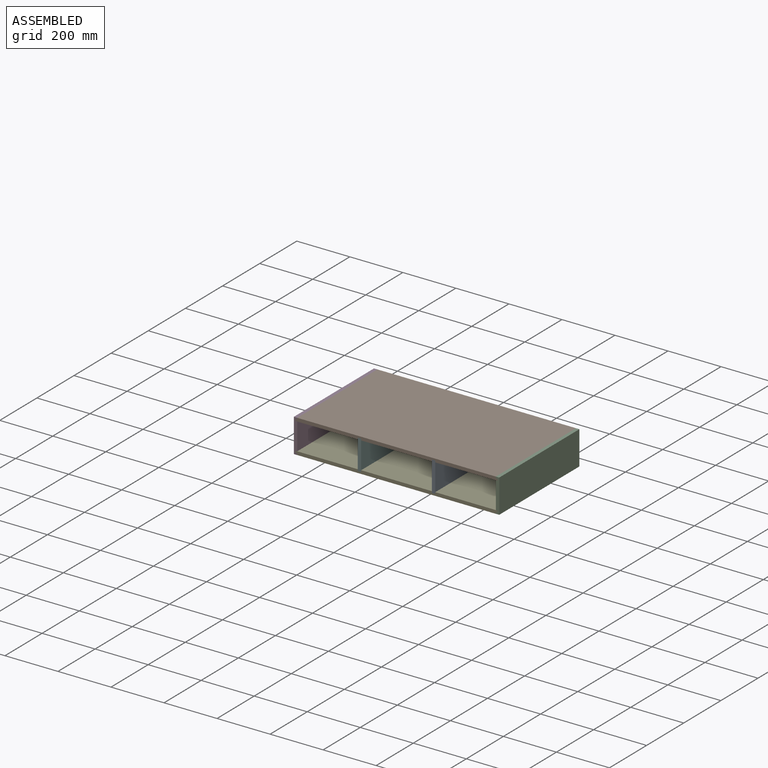
[diagram: assembled view]
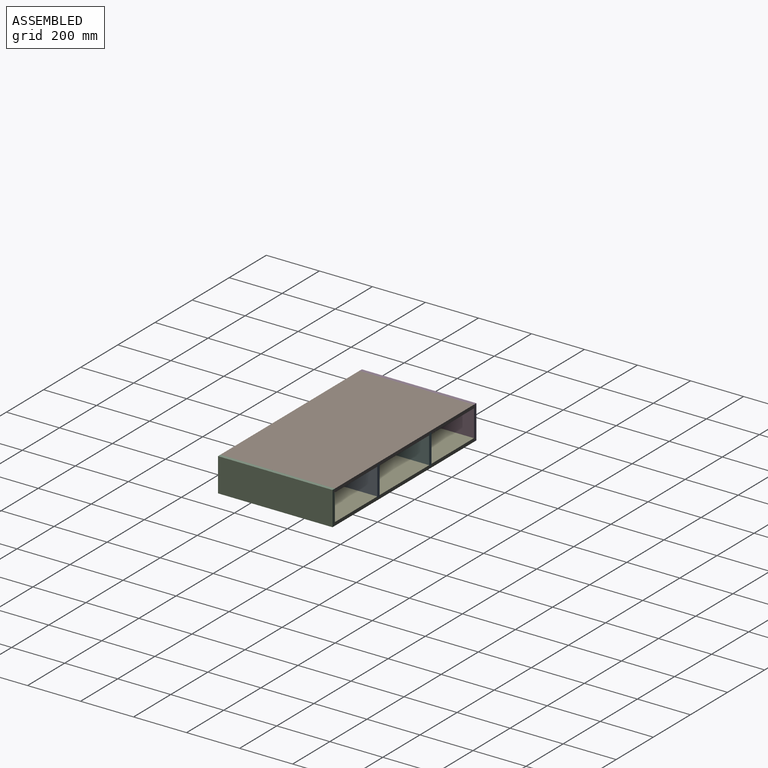
[diagram: assembled view, second angle]
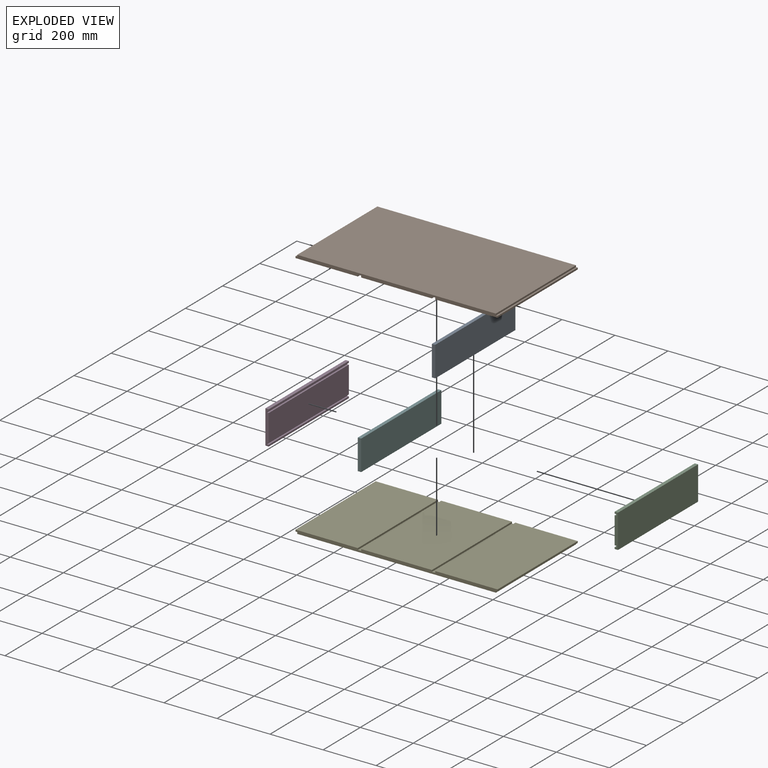
[diagram: exploded view]
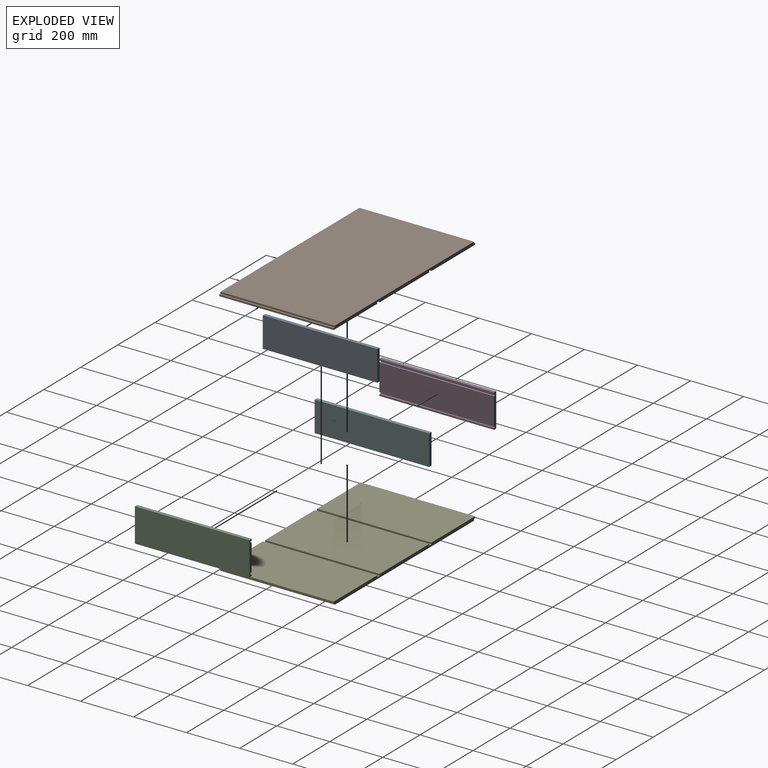
[diagram: exploded view, second angle]
ASSEMBLY  parts=6 mates=5
PART A: 6 faces, bbox 431.8x12.7x114.3 mm
  f0: plane 431.8x12.7mm, normal (0,0,1), area 5483.9mm2, adj f1,f3,f4,f5
  f1: plane 114.3x12.7mm, normal (-1,0,0), area 1451.6mm2, adj f0,f2,f4,f5
  f2: plane 431.8x12.7mm, normal (0,0,-1), area 5483.9mm2, adj f1,f3,f4,f5
  f3: plane 114.3x12.7mm, normal (1,0,0), area 1451.6mm2, adj f0,f2,f4,f5
  f4: plane 431.8x114.3mm, normal (0,-1,0), area 49354.7mm2, adj f0,f1,f2,f3
  f5: plane 431.8x114.3mm, normal (0,1,0), area 49354.7mm2, adj f0,f1,f2,f3
PART B: 18 faces, bbox 762x12.7x431.8 mm
  f0: plane 431.8x266.7mm, normal (0,1,0), area 115161.1mm2, adj f1,f4,f13,f15
  f1: plane 762x12.7mm, normal (0,0,1), area 9435.5mm2, adj f0,f2,f3,f5,f6,f7,f8,f9
  f2: plane 431.8x234.95mm, normal (0,1,0), area 101451.4mm2, adj f1,f4,f5,f12
  f3: plane 431.8x6.35mm, normal (-1,0,0), area 2741.9mm2, adj f1,f4,f7,f11
  f4: plane 762x12.7mm, normal (0,0,-1), area 9435.5mm2, adj f0,f2,f3,f5,f6,f7,f8,f9
  f5: plane 431.8x6.35mm, normal (1,0,0), area 2741.9mm2, adj f1,f2,f4,f9
  f6: plane 749.3x431.8mm, normal (0,-1,0), area 323547.7mm2, adj f1,f4,f8,f10
  f7: plane 431.8x234.95mm, normal (0,1,0), area 101451.4mm2, adj f1,f3,f4,f16
  f8: plane 431.8x6.35mm, normal (1,0,0), area 2741.9mm2, adj f1,f4,f6,f9
  f9: plane 431.8x6.35mm, normal (0,-1,0), area 2741.9mm2, adj f1,f4,f5,f8
  f10: plane 431.8x6.35mm, normal (-1,0,0), area 2741.9mm2, adj f1,f4,f6,f11
  f11: plane 431.8x6.35mm, normal (0,-1,0), area 2741.9mm2, adj f1,f3,f4,f10
  f12: plane 431.8x6.35mm, normal (-1,0,0), area 2741.9mm2, adj f1,f2,f4,f14
  f13: plane 431.8x6.35mm, normal (1,0,0), area 2741.9mm2, adj f0,f1,f4,f14
  f14: plane 431.8x12.7mm, normal (0,1,0), area 5483.9mm2, adj f1,f4,f12,f13
  f15: plane 431.8x6.35mm, normal (-1,0,0), area 2741.9mm2, adj f0,f1,f4,f17
  f16: plane 431.8x6.35mm, normal (1,0,0), area 2741.9mm2, adj f1,f4,f7,f17
  f17: plane 431.8x12.7mm, normal (0,1,0), area 5483.9mm2, adj f1,f4,f15,f16
PART C: 14 faces, bbox 431.8x12.7x127 mm
  f0: plane 431.8x101.6mm, normal (0,-1,0), area 43870.9mm2, adj f1,f4,f9,f11
  f1: plane 127x12.7mm, normal (1,0,0), area 1532.3mm2, adj f0,f2,f3,f5,f6,f7,f8,f9
  f2: plane 431.8x6.35mm, normal (0,-1,0), area 2741.9mm2, adj f1,f3,f4,f8
  f3: plane 431.8x12.7mm, normal (0,0,1), area 5483.9mm2, adj f1,f2,f4,f7
  f4: plane 127x12.7mm, normal (-1,0,0), area 1532.3mm2, adj f0,f2,f3,f5,f6,f7,f8,f9
  f5: plane 431.8x12.7mm, normal (0,0,-1), area 5483.9mm2, adj f1,f4,f6,f7
  f6: plane 431.8x6.35mm, normal (0,-1,0), area 2741.9mm2, adj f1,f4,f5,f12
  f7: plane 431.8x127mm, normal (0,1,0), area 54838.6mm2, adj f1,f3,f4,f5
  f8: plane 431.8x6.35mm, normal (0,0,-1), area 2741.9mm2, adj f1,f2,f4,f10
  f9: plane 431.8x6.35mm, normal (0,0,1), area 2741.9mm2, adj f0,f1,f4,f10
  f10: plane 431.8x6.35mm, normal (0,-1,0), area 2741.9mm2, adj f1,f4,f8,f9
  f11: plane 431.8x6.35mm, normal (0,0,-1), area 2741.9mm2, adj f0,f1,f4,f13
  f12: plane 431.8x6.35mm, normal (0,0,1), area 2741.9mm2, adj f1,f4,f6,f13
  f13: plane 431.8x6.35mm, normal (0,-1,0), area 2741.9mm2, adj f1,f4,f11,f12
PART D: same geometry as C
PART E: same geometry as B
PART F: same geometry as A
PLACE A rot(axis=(0,0,1),90deg) t=(753.49,-176.35,-371.48)mm
PLACE B rot(axis=(-1,0,0),90deg) t=(239.14,255.45,-377.83)mm fixed
PLACE C rot(axis=(0,0,-1),90deg) t=(1007.49,255.45,-365.13)mm
PLACE D rot(axis=(0,0,1),90deg) t=(232.79,-176.35,-365.13)mm
PLACE E rot(axis=(1,0,0),90deg) t=(239.14,-176.35,-479.43)mm
PLACE F rot(axis=(0,0,1),90deg) t=(474.09,-176.35,-371.48)mm
MATE fastened E.f14 <-> A.f2  axis (0,0,1) through (753.49,-176.35,-485.78)mm
MATE fastened C.f2 <-> B.f8  axis (-1,0,0) through (994.79,-176.35,-365.13)mm
MATE fastened E.f17 <-> F.f2  axis (0,0,1) through (474.09,-176.35,-485.78)mm
MATE fastened D.f2 <-> B.f10  axis (1,0,0) through (245.49,-176.35,-365.13)mm
MATE fastened D.f6 <-> E.f10  axis (1,0,0) through (245.49,-176.35,-492.13)mm
